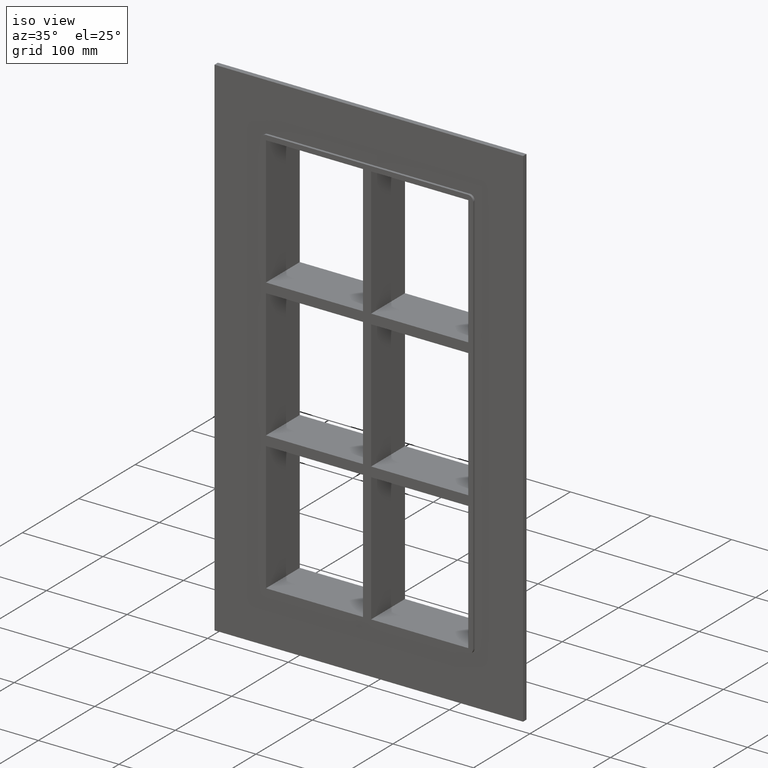
[diagram: clean part render]
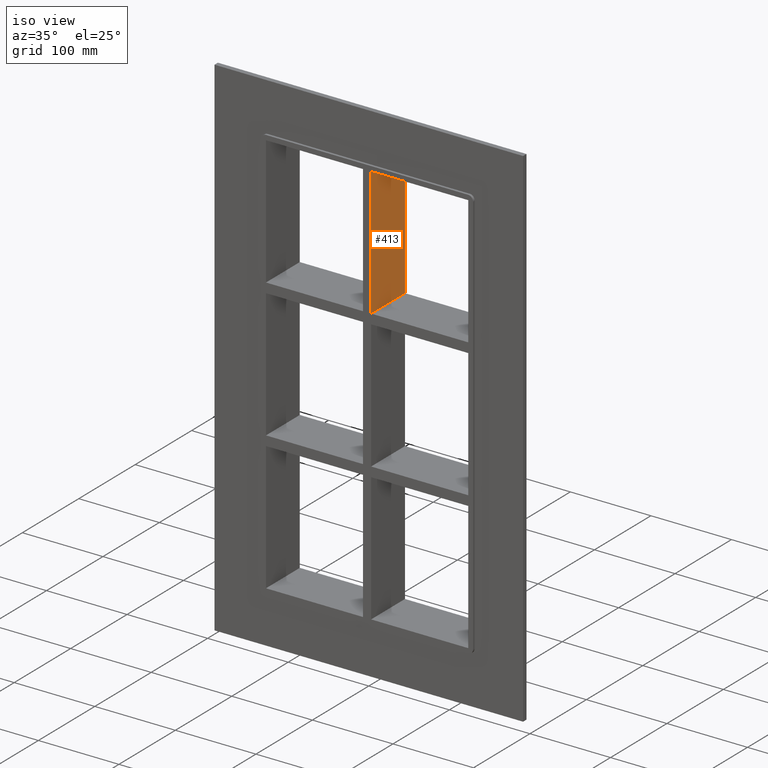
[diagram: same view with one face highlighted and labeled with its STEP entity id]
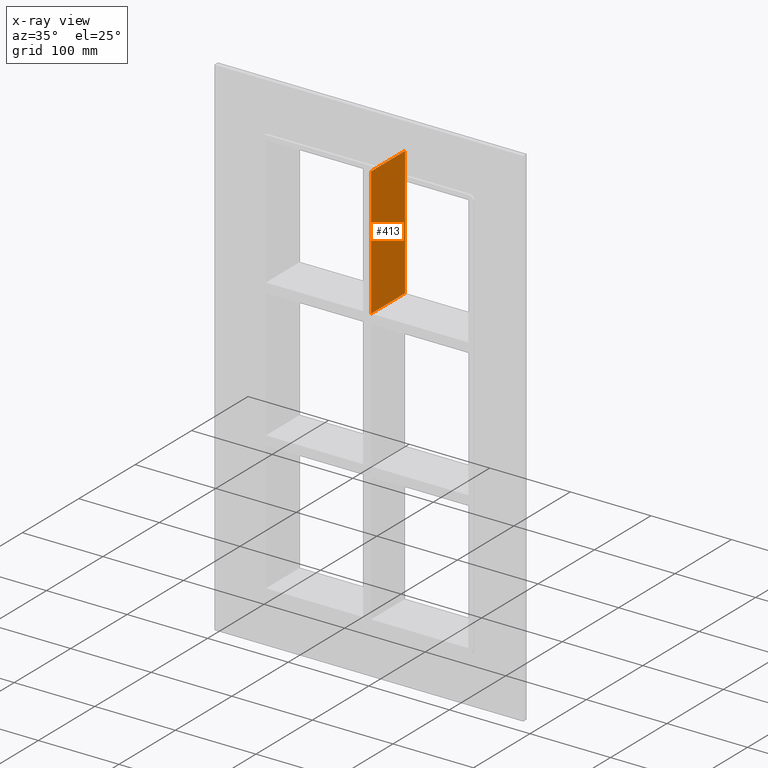
[diagram: x-ray of the same camera — body ghosted, the highlighted face saturated]
A machine part, iso view. The second image highlights one B-rep face of the part: STEP entity #413.
The next image is the same camera in x-ray: the body ghosted, the highlighted face saturated — about 0% of this face is hidden behind the body in this view.
In plain terms, the highlighted planar face has unit normal (1, 0, 0).
Its self-contained STEP definition (entity closure, byte-faithful):
#113=CARTESIAN_POINT('',(5.0,-3.0,91.750000000000085));
#114=VERTEX_POINT('',#113);
#115=CARTESIAN_POINT('',(5.0,57.0,91.750000000000085));
#116=VERTEX_POINT('',#115);
#117=CARTESIAN_POINT('',(5.0,-3.0,91.750000000000099));
#118=DIRECTION('',(0.0,1.0,0.0));
#119=VECTOR('',#118,60.0);
#120=LINE('',#117,#119);
#121=EDGE_CURVE('',#114,#116,#120,.T.);
#383=CARTESIAN_POINT('',(5.0,-3.0,251.25));
#384=DIRECTION('',(1.0,0.0,0.0));
#385=DIRECTION('',(0.0,0.0,-1.0));
#386=AXIS2_PLACEMENT_3D('',#383,#384,#385);
#387=PLANE('',#386);
#388=ORIENTED_EDGE('',*,*,#121,.T.);
#389=CARTESIAN_POINT('',(5.0,57.0,251.25));
#390=VERTEX_POINT('',#389);
#391=CARTESIAN_POINT('',(5.0,57.0,251.25));
#392=DIRECTION('',(0.0,0.0,-1.0));
#393=VECTOR('',#392,159.49999999999991);
#394=LINE('',#391,#393);
#395=EDGE_CURVE('',#390,#116,#394,.T.);
#396=ORIENTED_EDGE('',*,*,#395,.F.);
#397=CARTESIAN_POINT('',(5.0,-3.0,251.25));
#398=VERTEX_POINT('',#397);
#399=CARTESIAN_POINT('',(5.0,-3.0,251.25));
#400=DIRECTION('',(0.0,1.0,0.0));
#401=VECTOR('',#400,60.000000000000007);
#402=LINE('',#399,#401);
#403=EDGE_CURVE('',#398,#390,#402,.T.);
#404=ORIENTED_EDGE('',*,*,#403,.F.);
#405=CARTESIAN_POINT('',(5.0,-3.0,251.25));
#406=DIRECTION('',(0.0,0.0,-1.0));
#407=VECTOR('',#406,159.49999999999991);
#408=LINE('',#405,#407);
#409=EDGE_CURVE('',#398,#114,#408,.T.);
#410=ORIENTED_EDGE('',*,*,#409,.T.);
#411=EDGE_LOOP('',(#388,#396,#404,#410));
#412=FACE_OUTER_BOUND('',#411,.T.);
#413=ADVANCED_FACE('',(#412),#387,.T.);